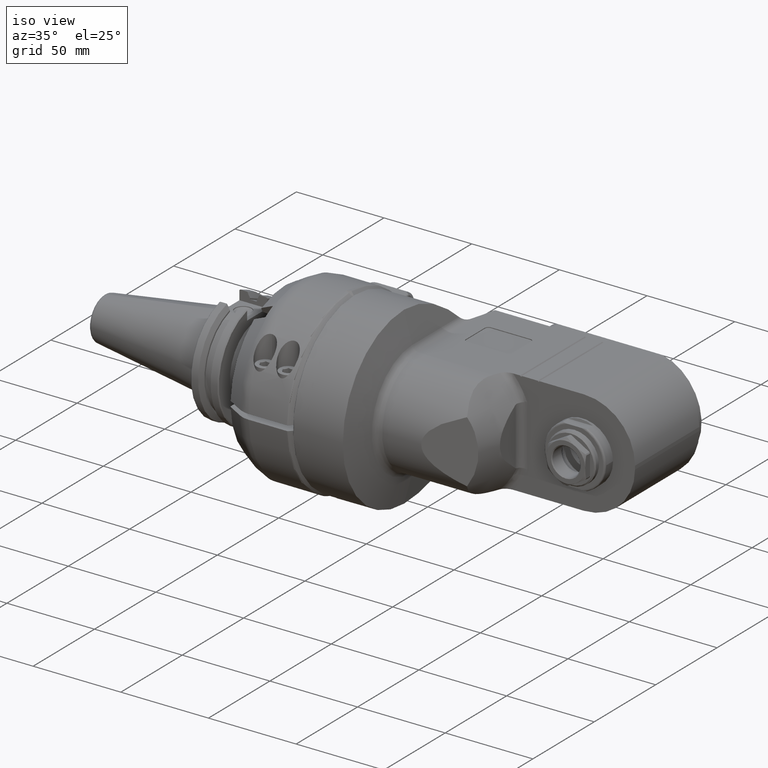
[diagram: clean part render]
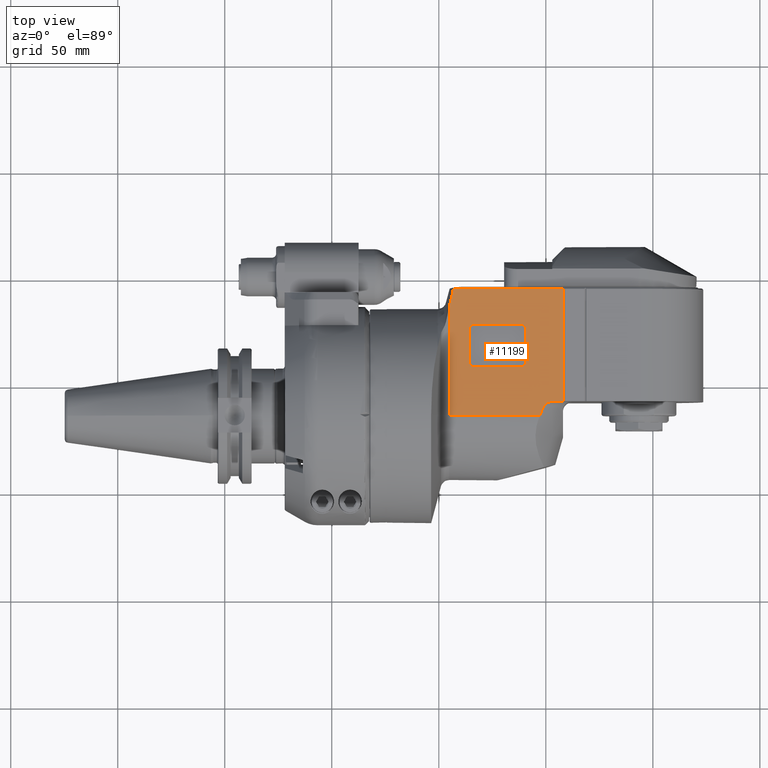
[diagram: tour spotlight — one face highlighted and labeled with its STEP entity id]
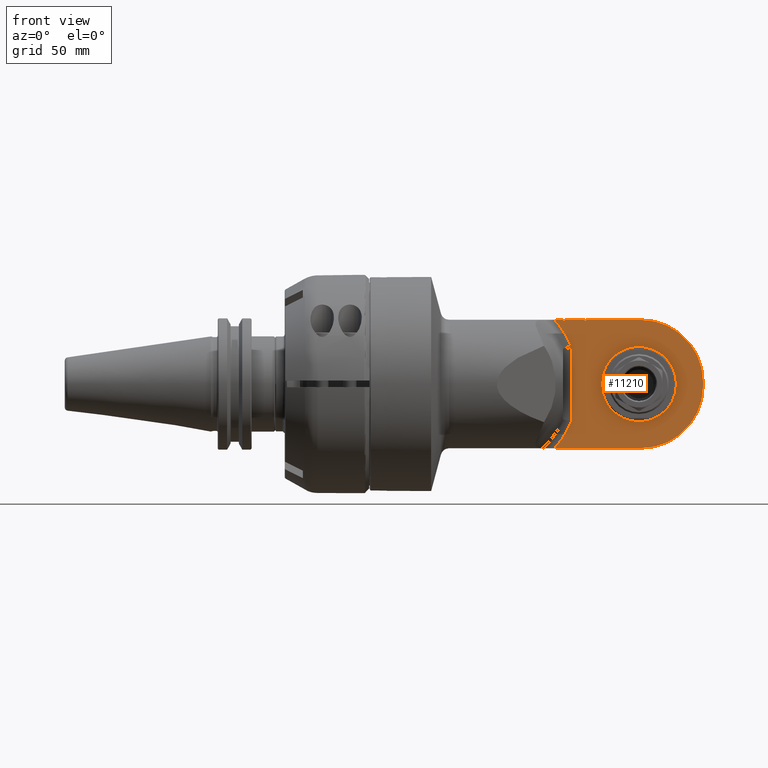
[diagram: tour spotlight — one face highlighted and labeled with its STEP entity id]
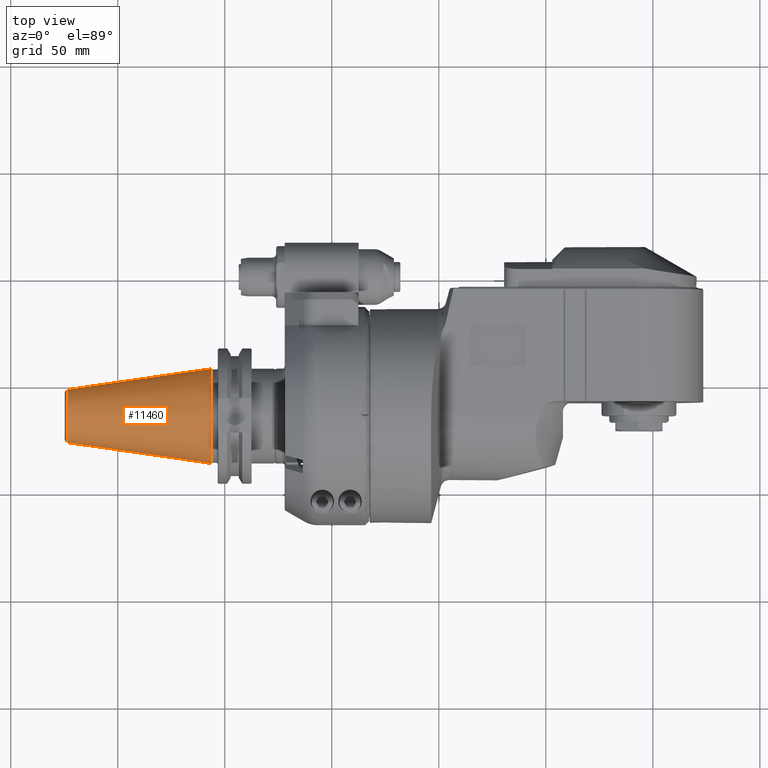
[diagram: tour spotlight — one face highlighted and labeled with its STEP entity id]
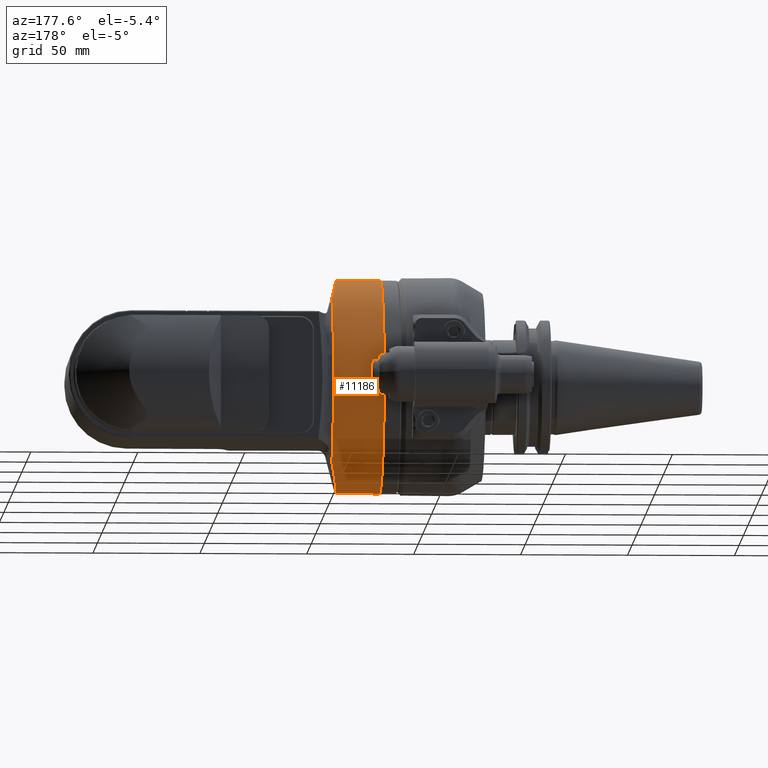
[diagram: tour spotlight — one face highlighted and labeled with its STEP entity id]
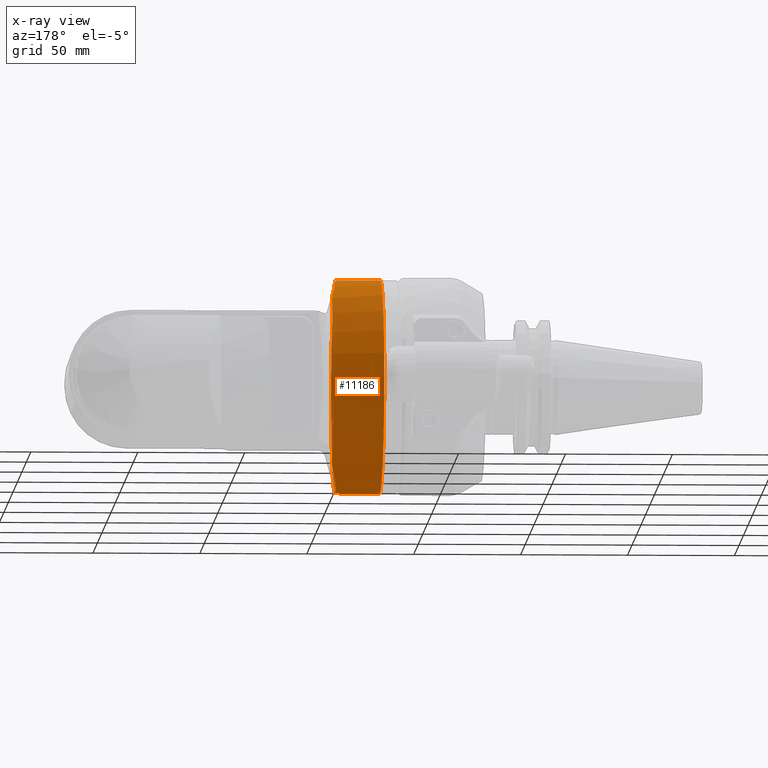
[diagram: x-ray of the same camera — body ghosted, this tour face saturated]
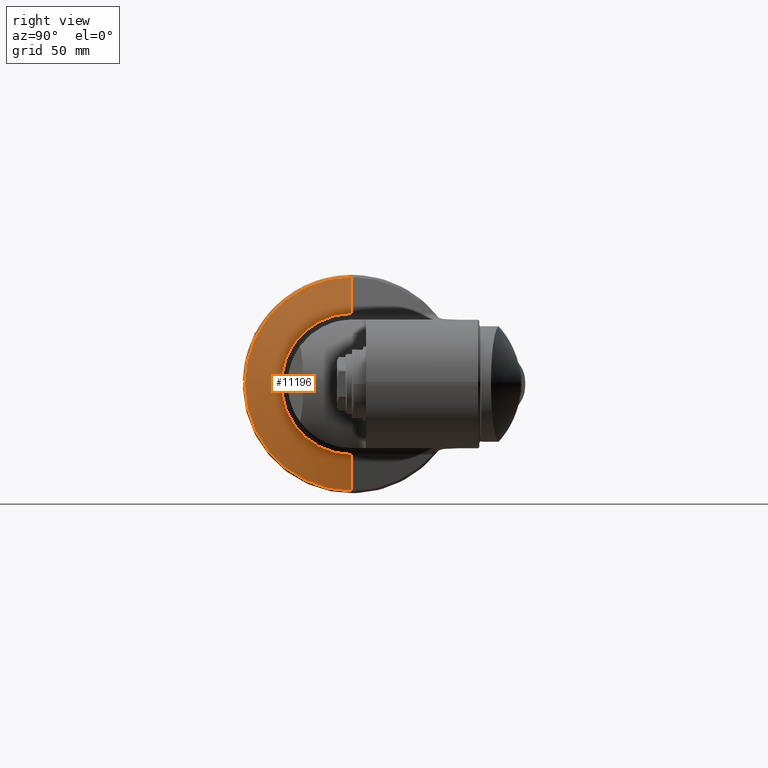
[diagram: tour spotlight — one face highlighted and labeled with its STEP entity id]
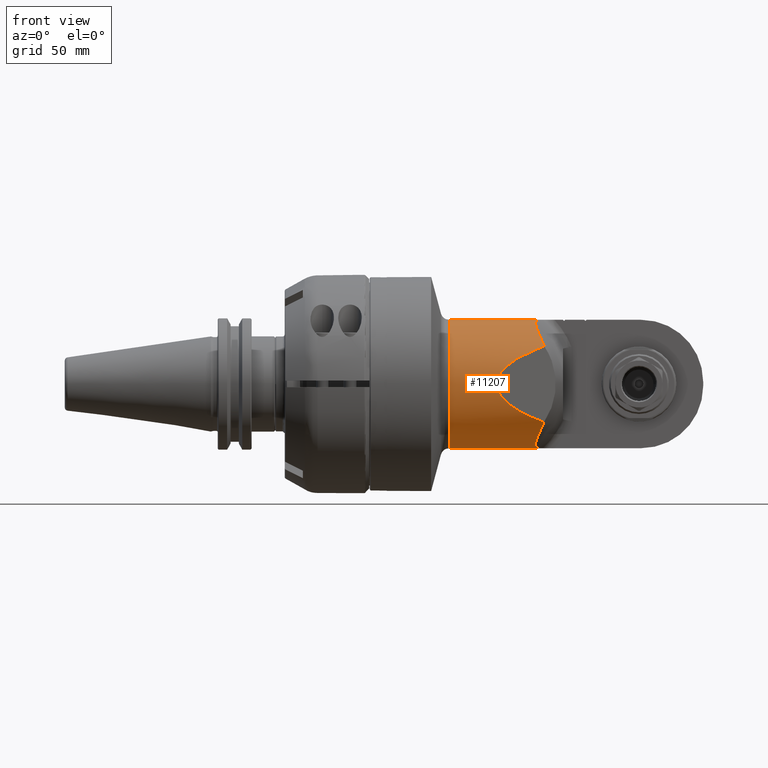
[diagram: tour spotlight — one face highlighted and labeled with its STEP entity id]
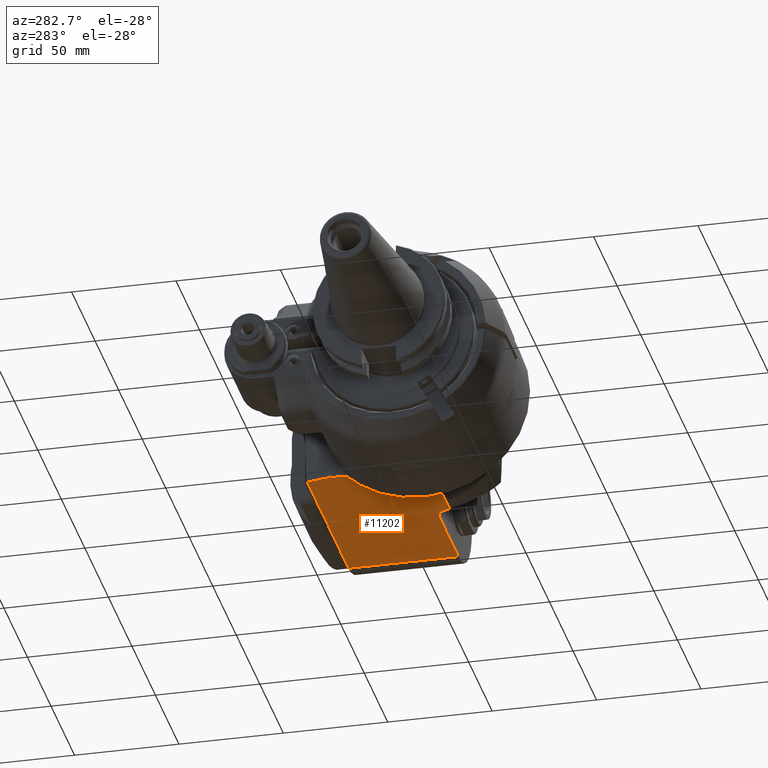
[diagram: tour spotlight — one face highlighted and labeled with its STEP entity id]
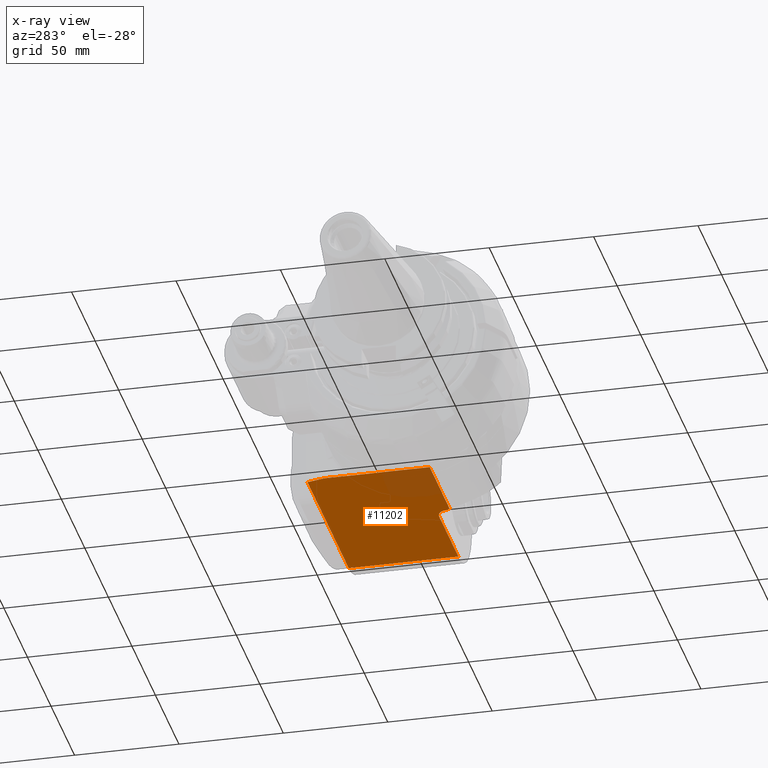
[diagram: x-ray of the same camera — body ghosted, this tour face saturated]
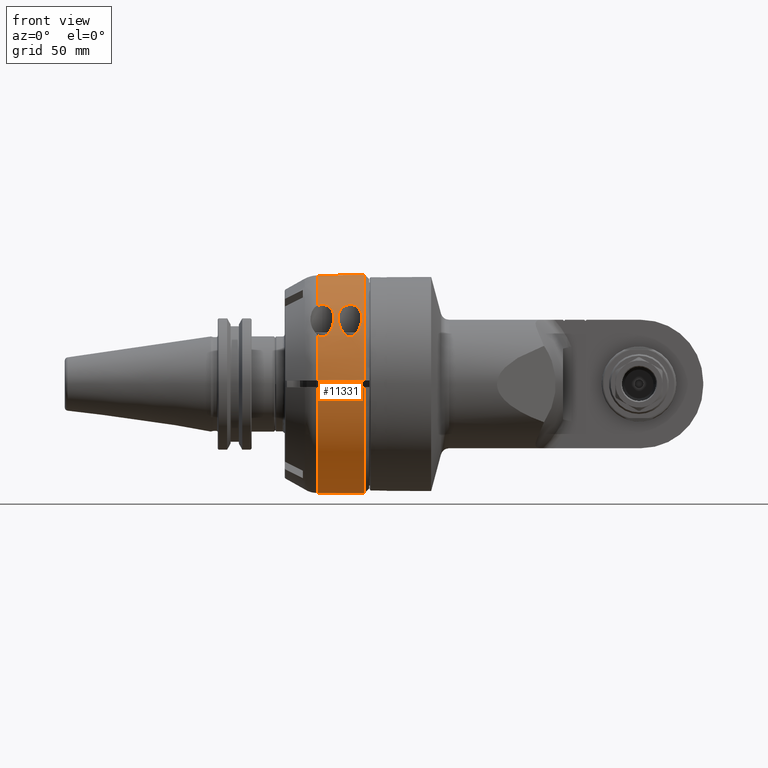
[diagram: tour spotlight — one face highlighted and labeled with its STEP entity id]
A machine part: a face-by-face anatomy tour. The part has 720 B-rep faces; the first image is the clean iso view, then the 8 largest visible faces are spotlighted one at a time (largest first), each with its STEP entity span.

Face 1 — top view, entity #11199. In plain terms, the highlighted planar face has unit normal (0, 0, 1).
Definition (entity closure, byte-faithful):
#108=(
BOUNDED_CURVE()
B_SPLINE_CURVE(2,(#17058,#17059,#17060),.UNSPECIFIED.,.F.,.F.)
B_SPLINE_CURVE_WITH_KNOTS((3,3),(3.88731172129268,4.30357037737945),
 .UNSPECIFIED.)
CURVE()
GEOMETRIC_REPRESENTATION_ITEM()
RATIONAL_B_SPLINE_CURVE((1.03632939364827,1.03683296791404,1.03702782096075))
REPRESENTATION_ITEM('')
);
#109=(
BOUNDED_CURVE()
B_SPLINE_CURVE(2,(#17084,#17085,#17086),.UNSPECIFIED.,.F.,.F.)
B_SPLINE_CURVE_WITH_KNOTS((3,3),(-20.2216502627518,-18.52143439675),
 .UNSPECIFIED.)
CURVE()
GEOMETRIC_REPRESENTATION_ITEM()
RATIONAL_B_SPLINE_CURVE((1.08247320241685,1.10694018668164,1.12670982661861))
REPRESENTATION_ITEM('')
);
#218=B_SPLINE_CURVE_WITH_KNOTS('',3,(#17062,#17063,#17064,#17065,#17066,
#17067,#17068,#17069,#17070,#17071,#17072,#17073,#17074,#17075,#17076,#17077),
 .UNSPECIFIED.,.F.,.F.,(4,2,2,2,2,2,2,4),(-1.29904819683392,-1.26688462573097,
-1.18595281425532,-1.10502100277968,-1.00596959417875,-0.906918185577824,
-0.796275042541381,-0.685631899504938),.UNSPECIFIED.);
#556=FACE_BOUND('',#1716,.T.);
#681=PLANE('',#11999);
#992=FACE_OUTER_BOUND('',#1715,.T.);
#1715=EDGE_LOOP('',(#7648,#7649,#7650,#7651,#7652,#7653,#7654,#7655));
#1716=EDGE_LOOP('',(#7656,#7657,#7658,#7659,#7660,#7661,#7662,#7663));
#2551=LINE('',#17036,#3315);
#2553=LINE('',#17056,#3317);
#2554=LINE('',#17079,#3318);
#2555=LINE('',#17081,#3319);
#2556=LINE('',#17083,#3320);
#2557=LINE('',#17091,#3321);
#2558=LINE('',#17095,#3322);
#2559=LINE('',#17099,#3323);
#2560=LINE('',#17102,#3324);
#3315=VECTOR('',#13456,50.4922186075015);
#3317=VECTOR('',#13460,42.40269030669);
#3318=VECTOR('',#13461,3.958980337505);
#3319=VECTOR('',#13462,52.5);
#3320=VECTOR('',#13463,10.);
#3321=VECTOR('',#13466,15.5);
#3322=VECTOR('',#13469,22.5);
#3323=VECTOR('',#13472,15.5);
#3324=VECTOR('',#13475,22.5);
#4101=CIRCLE('',#12000,2.);
#4102=CIRCLE('',#12001,2.);
#4103=CIRCLE('',#12002,2.);
#4104=CIRCLE('',#12003,2.);
#4788=VERTEX_POINT('',#17031);
#4789=VERTEX_POINT('',#17035);
#4792=VERTEX_POINT('',#17055);
#4793=VERTEX_POINT('',#17057);
#4794=VERTEX_POINT('',#17061);
#4795=VERTEX_POINT('',#17078);
#4796=VERTEX_POINT('',#17080);
#4797=VERTEX_POINT('',#17082);
#4798=VERTEX_POINT('',#17087);
#4799=VERTEX_POINT('',#17088);
#4800=VERTEX_POINT('',#17090);
#4801=VERTEX_POINT('',#17092);
#4802=VERTEX_POINT('',#17094);
#4803=VERTEX_POINT('',#17096);
#4804=VERTEX_POINT('',#17098);
#4805=VERTEX_POINT('',#17100);
#5920=EDGE_CURVE('',#4788,#4789,#2551,.T.);
#5924=EDGE_CURVE('',#4792,#4788,#2553,.T.);
#5925=EDGE_CURVE('',#4792,#4793,#108,.T.);
#5926=EDGE_CURVE('',#4793,#4794,#218,.T.);
#5927=EDGE_CURVE('',#4795,#4794,#2554,.T.);
#5928=EDGE_CURVE('',#4796,#4795,#2555,.T.);
#5929=EDGE_CURVE('',#4797,#4796,#2556,.T.);
#5930=EDGE_CURVE('',#4789,#4797,#109,.T.);
#5931=EDGE_CURVE('',#4798,#4799,#4101,.T.);
#5932=EDGE_CURVE('',#4799,#4800,#2557,.T.);
#5933=EDGE_CURVE('',#4800,#4801,#4102,.T.);
#5934=EDGE_CURVE('',#4801,#4802,#2558,.T.);
#5935=EDGE_CURVE('',#4802,#4803,#4103,.T.);
#5936=EDGE_CURVE('',#4803,#4804,#2559,.T.);
#5937=EDGE_CURVE('',#4804,#4805,#4104,.T.);
#5938=EDGE_CURVE('',#4805,#4798,#2560,.T.);
#7648=ORIENTED_EDGE('',*,*,#5920,.F.);
#7649=ORIENTED_EDGE('',*,*,#5924,.F.);
#7650=ORIENTED_EDGE('',*,*,#5925,.T.);
#7651=ORIENTED_EDGE('',*,*,#5926,.T.);
#7652=ORIENTED_EDGE('',*,*,#5927,.F.);
#7653=ORIENTED_EDGE('',*,*,#5928,.F.);
#7654=ORIENTED_EDGE('',*,*,#5929,.F.);
#7655=ORIENTED_EDGE('',*,*,#5930,.F.);
#7656=ORIENTED_EDGE('',*,*,#5931,.T.);
#7657=ORIENTED_EDGE('',*,*,#5932,.T.);
#7658=ORIENTED_EDGE('',*,*,#5933,.T.);
#7659=ORIENTED_EDGE('',*,*,#5934,.T.);
#7660=ORIENTED_EDGE('',*,*,#5935,.T.);
#7661=ORIENTED_EDGE('',*,*,#5936,.T.);
#7662=ORIENTED_EDGE('',*,*,#5937,.T.);
#7663=ORIENTED_EDGE('',*,*,#5938,.T.);
#11199=ADVANCED_FACE('',(#992,#556),#681,.T.);
#11999=AXIS2_PLACEMENT_3D('',#17054,#13458,#13459);
#12000=AXIS2_PLACEMENT_3D('',#17089,#13464,#13465);
#12001=AXIS2_PLACEMENT_3D('',#17093,#13467,#13468);
#12002=AXIS2_PLACEMENT_3D('',#17097,#13470,#13471);
#12003=AXIS2_PLACEMENT_3D('',#17101,#13473,#13474);
#13456=DIRECTION('',(1.58048043767995E-6,0.99999999999787,-1.32724426305596E-6));
#13458=DIRECTION('center_axis',(0.,0.,1.));
#13459=DIRECTION('ref_axis',(0.,-1.,0.));
#13460=DIRECTION('',(-0.999999999999999,1.247476790636E-8,3.211245698813E-8));
#13461=DIRECTION('',(-1.,0.,0.));
#13462=DIRECTION('',(0.,-1.,0.));
#13463=DIRECTION('',(1.,0.,0.));
#13464=DIRECTION('center_axis',(0.,0.,-1.));
#13465=DIRECTION('ref_axis',(0.,-1.,0.));
#13466=DIRECTION('',(0.,1.,0.));
#13467=DIRECTION('center_axis',(0.,0.,-1.));
#13468=DIRECTION('ref_axis',(-1.,0.,0.));
#13469=DIRECTION('',(1.,0.,0.));
#13470=DIRECTION('center_axis',(0.,0.,-1.));
#13471=DIRECTION('ref_axis',(0.,1.,0.));
#13472=DIRECTION('',(0.,-1.,0.));
#13473=DIRECTION('center_axis',(0.,0.,-1.));
#13474=DIRECTION('ref_axis',(1.,0.,0.));
#13475=DIRECTION('',(-1.,0.,0.));
#17031=CARTESIAN_POINT('',(-88.66025403784,-3.215626318717E-14,30.));
#17035=CARTESIAN_POINT('',(-88.6601802638477,50.492219995972,29.9999405506243));
#17036=CARTESIAN_POINT('',(-88.66025403784,0.,30.));
#17054=CARTESIAN_POINT('Origin',(-93.,0.,30.));
#17055=CARTESIAN_POINT('',(-46.257571096424,-4.81788432546018E-7,29.9999995461167));
#17056=CARTESIAN_POINT('',(-46.25756373116,-5.289637251381E-7,29.99999863835));
#17057=CARTESIAN_POINT('',(-44.8540428182556,3.53527617765084,30.0000000004781));
#17058=CARTESIAN_POINT('Ctrl Pts',(-46.257571109742,-4.76425516622418E-7,
30.));
#17059=CARTESIAN_POINT('Ctrl Pts',(-45.5639810884769,1.72243829959541,30.));
#17060=CARTESIAN_POINT('Ctrl Pts',(-44.8540428178124,3.53527617747736,30.));
#17061=CARTESIAN_POINT('',(-39.45898033751,6.5,30.));
#17062=CARTESIAN_POINT('Ctrl Pts',(-44.8540428178121,3.53527617747716,30.));
#17063=CARTESIAN_POINT('Ctrl Pts',(-44.8123974485482,3.64161824437068,30.));
#17064=CARTESIAN_POINT('Ctrl Pts',(-44.7655773317263,3.74351918680852,30.));
#17065=CARTESIAN_POINT('Ctrl Pts',(-44.5922500260235,4.07829529141558,30.));
#17066=CARTESIAN_POINT('Ctrl Pts',(-44.4264723064874,4.32229786159449,30.));
#17067=CARTESIAN_POINT('Ctrl Pts',(-44.0435369211292,4.76780407145822,30.));
#17068=CARTESIAN_POINT('Ctrl Pts',(-43.8268543227488,4.96971583580245,30.));
#17069=CARTESIAN_POINT('Ctrl Pts',(-43.3578282406687,5.34381130191266,30.));
#17070=CARTESIAN_POINT('Ctrl Pts',(-43.0548954390126,5.54170426895446,30.));
#17071=CARTESIAN_POINT('Ctrl Pts',(-42.4170058685572,5.87849715763416,30.));
#17072=CARTESIAN_POINT('Ctrl Pts',(-42.0822325212658,6.01774436719797,30.));
#17073=CARTESIAN_POINT('Ctrl Pts',(-41.4199135905022,6.24114813823443,30.));
#17074=CARTESIAN_POINT('Ctrl Pts',(-41.0275628869421,6.34051745639951,30.));
#17075=CARTESIAN_POINT('Ctrl Pts',(-40.2314994588138,6.4699308390669,30.));
#17076=CARTESIAN_POINT('Ctrl Pts',(-39.8277908142917,6.5,30.));
#17077=CARTESIAN_POINT('Ctrl Pts',(-39.4589803375031,6.5,30.));
#17078=CARTESIAN_POINT('',(-35.5,6.5,30.));
#17079=CARTESIAN_POINT('',(-35.5,6.5,30.));
#17080=CARTESIAN_POINT('',(-35.5,59.,30.));
#17081=CARTESIAN_POINT('',(-35.5,59.,30.));
#17082=CARTESIAN_POINT('',(-86.6621376001117,59.0000000009116,29.9999999996263));
#17083=CARTESIAN_POINT('',(-134.3000012,59.,30.));
#17084=CARTESIAN_POINT('Ctrl Pts',(-88.6602276275189,50.4922309064034,30.));
#17085=CARTESIAN_POINT('Ctrl Pts',(-87.7388104439338,54.4921866894395,30.));
#17086=CARTESIAN_POINT('Ctrl Pts',(-86.6621376002805,59.0000000009519,30.));
#17087=CARTESIAN_POINT('',(-77.25,22.75,30.));
#17088=CARTESIAN_POINT('',(-79.25,24.75,30.));
#17089=CARTESIAN_POINT('Origin',(-77.25,24.75,30.));
#17090=CARTESIAN_POINT('',(-79.25,40.25,30.));
#17091=CARTESIAN_POINT('',(-79.25,24.75,30.));
#17092=CARTESIAN_POINT('',(-77.25,42.25,30.));
#17093=CARTESIAN_POINT('Origin',(-77.25,40.25,30.));
#17094=CARTESIAN_POINT('',(-54.75,42.25,30.));
#17095=CARTESIAN_POINT('',(-77.25,42.25,30.));
#17096=CARTESIAN_POINT('',(-52.75,40.25,30.));
#17097=CARTESIAN_POINT('Origin',(-54.75,40.25,30.));
#17098=CARTESIAN_POINT('',(-52.75,24.75,30.));
#17099=CARTESIAN_POINT('',(-52.75,40.25,30.));
#17100=CARTESIAN_POINT('',(-54.75,22.75,30.));
#17101=CARTESIAN_POINT('Origin',(-54.75,24.75,30.));
#17102=CARTESIAN_POINT('',(-54.75,22.75,30.));

Face 2 — front view, entity #11210. In plain terms, the highlighted planar face has unit normal (0, 1, 0).
Definition (entity closure, byte-faithful):
#557=FACE_BOUND('',#1728,.T.);
#686=PLANE('',#12020);
#1003=FACE_OUTER_BOUND('',#1727,.T.);
#1727=EDGE_LOOP('',(#7724,#7725,#7726,#7727,#7728,#7729,#7730,#7731,#7732,
#7733,#7734,#7735,#7736,#7737));
#1728=EDGE_LOOP('',(#7738));
#2554=LINE('',#17079,#3318);
#2566=LINE('',#17137,#3330);
#2569=LINE('',#17264,#3333);
#2570=LINE('',#17269,#3334);
#2571=LINE('',#17273,#3335);
#2572=LINE('',#17275,#3336);
#2573=LINE('',#17277,#3337);
#2574=LINE('',#17279,#3338);
#2575=LINE('',#17281,#3339);
#2576=LINE('',#17282,#3340);
#3318=VECTOR('',#13461,3.958980337505);
#3330=VECTOR('',#13489,40.4589803375);
#3333=VECTOR('',#13518,34.79942528261);
#3334=VECTOR('',#13523,2.);
#3335=VECTOR('',#13526,25.5);
#3336=VECTOR('',#13527,0.707106781186402);
#3337=VECTOR('',#13528,0.707106781186402);
#3338=VECTOR('',#13529,9.);
#3339=VECTOR('',#13530,0.707106781186402);
#3340=VECTOR('',#13531,0.707106781186353);
#4108=CIRCLE('',#12019,45.);
#4109=CIRCLE('',#12021,45.);
#4110=CIRCLE('',#12022,29.);
#4111=CIRCLE('',#12023,29.);
#4112=CIRCLE('',#12024,17.5);
#4794=VERTEX_POINT('',#17061);
#4795=VERTEX_POINT('',#17078);
#4813=VERTEX_POINT('',#17134);
#4814=VERTEX_POINT('',#17136);
#4824=VERTEX_POINT('',#17248);
#4825=VERTEX_POINT('',#17263);
#4826=VERTEX_POINT('',#17266);
#4827=VERTEX_POINT('',#17268);
#4828=VERTEX_POINT('',#17270);
#4829=VERTEX_POINT('',#17272);
#4830=VERTEX_POINT('',#17274);
#4831=VERTEX_POINT('',#17276);
#4832=VERTEX_POINT('',#17278);
#4833=VERTEX_POINT('',#17280);
#4834=VERTEX_POINT('',#17283);
#5927=EDGE_CURVE('',#4795,#4794,#2554,.T.);
#5950=EDGE_CURVE('',#4814,#4813,#2566,.T.);
#5968=EDGE_CURVE('',#4794,#4824,#4108,.T.);
#5969=EDGE_CURVE('',#4825,#4824,#2569,.T.);
#5970=EDGE_CURVE('',#4825,#4814,#4109,.T.);
#5971=EDGE_CURVE('',#4813,#4826,#4110,.T.);
#5972=EDGE_CURVE('',#4826,#4827,#2570,.T.);
#5973=EDGE_CURVE('',#4827,#4828,#4111,.T.);
#5974=EDGE_CURVE('',#4828,#4829,#2571,.T.);
#5975=EDGE_CURVE('',#4829,#4830,#2572,.T.);
#5976=EDGE_CURVE('',#4830,#4831,#2573,.T.);
#5977=EDGE_CURVE('',#4831,#4832,#2574,.T.);
#5978=EDGE_CURVE('',#4832,#4833,#2575,.T.);
#5979=EDGE_CURVE('',#4833,#4795,#2576,.T.);
#5980=EDGE_CURVE('',#4834,#4834,#4112,.T.);
#7724=ORIENTED_EDGE('',*,*,#5969,.F.);
#7725=ORIENTED_EDGE('',*,*,#5970,.T.);
#7726=ORIENTED_EDGE('',*,*,#5950,.T.);
#7727=ORIENTED_EDGE('',*,*,#5971,.T.);
#7728=ORIENTED_EDGE('',*,*,#5972,.T.);
#7729=ORIENTED_EDGE('',*,*,#5973,.T.);
#7730=ORIENTED_EDGE('',*,*,#5974,.T.);
#7731=ORIENTED_EDGE('',*,*,#5975,.T.);
#7732=ORIENTED_EDGE('',*,*,#5976,.T.);
#7733=ORIENTED_EDGE('',*,*,#5977,.T.);
#7734=ORIENTED_EDGE('',*,*,#5978,.T.);
#7735=ORIENTED_EDGE('',*,*,#5979,.T.);
#7736=ORIENTED_EDGE('',*,*,#5927,.T.);
#7737=ORIENTED_EDGE('',*,*,#5968,.T.);
#7738=ORIENTED_EDGE('',*,*,#5980,.T.);
#11210=ADVANCED_FACE('',(#1003,#557),#686,.F.);
#12019=AXIS2_PLACEMENT_3D('',#17261,#13514,#13515);
#12020=AXIS2_PLACEMENT_3D('',#17262,#13516,#13517);
#12021=AXIS2_PLACEMENT_3D('',#17265,#13519,#13520);
#12022=AXIS2_PLACEMENT_3D('',#17267,#13521,#13522);
#12023=AXIS2_PLACEMENT_3D('',#17271,#13524,#13525);
#12024=AXIS2_PLACEMENT_3D('',#17284,#13532,#13533);
#13461=DIRECTION('',(-1.,0.,0.));
#13489=DIRECTION('',(1.,0.,0.));
#13514=DIRECTION('center_axis',(0.,1.,0.));
#13515=DIRECTION('ref_axis',(0.7453559924999,0.,0.6666666666667));
#13516=DIRECTION('center_axis',(0.,1.,0.));
#13517=DIRECTION('ref_axis',(1.,0.,0.));
#13518=DIRECTION('',(0.,0.,1.));
#13519=DIRECTION('center_axis',(0.,1.,0.));
#13520=DIRECTION('ref_axis',(0.922222222222218,0.,-0.386660280917907));
#13521=DIRECTION('center_axis',(0.,-1.,0.));
#13522=DIRECTION('ref_axis',(0.,0.,-1.));
#13523=DIRECTION('',(0.,0.,1.));
#13524=DIRECTION('center_axis',(0.,-1.,0.));
#13525=DIRECTION('ref_axis',(1.,0.,0.));
#13526=DIRECTION('',(-1.,0.,0.));
#13527=DIRECTION('',(-0.707106781186498,0.,-0.707106781186598));
#13528=DIRECTION('',(-0.707106781186598,0.,0.707106781186498));
#13529=DIRECTION('',(-1.,0.,0.));
#13530=DIRECTION('',(-0.707106781186598,0.,-0.707106781186498));
#13531=DIRECTION('',(-0.707106781186548,0.,0.707106781186548));
#13532=DIRECTION('center_axis',(0.,1.,0.));
#13533=DIRECTION('ref_axis',(-1.,0.,0.));
#17061=CARTESIAN_POINT('',(-39.45898033751,6.5,30.));
#17078=CARTESIAN_POINT('',(-35.5,6.5,30.));
#17079=CARTESIAN_POINT('',(-35.5,6.5,30.));
#17134=CARTESIAN_POINT('',(1.00000000000001,6.5,-30.));
#17136=CARTESIAN_POINT('',(-39.4589803375,6.5,-30.));
#17137=CARTESIAN_POINT('',(-39.4589803375,6.5,-30.));
#17248=CARTESIAN_POINT('',(-31.5,6.5,17.39971264131));
#17261=CARTESIAN_POINT('Origin',(-73.,6.5,0.));
#17262=CARTESIAN_POINT('Origin',(-20.534653976,6.5,0.));
#17263=CARTESIAN_POINT('',(-31.5,6.5,-17.39971264131));
#17264=CARTESIAN_POINT('',(-31.5,6.5,-17.39971264131));
#17265=CARTESIAN_POINT('Origin',(-73.,6.5,0.));
#17266=CARTESIAN_POINT('',(30.,6.5,-1.));
#17267=CARTESIAN_POINT('Origin',(1.00000000000001,6.5,-1.));
#17268=CARTESIAN_POINT('',(30.,6.5,1.));
#17269=CARTESIAN_POINT('',(30.,6.5,-1.));
#17270=CARTESIAN_POINT('',(1.00000000000001,6.5,30.));
#17271=CARTESIAN_POINT('Origin',(1.00000000000001,6.5,1.));
#17272=CARTESIAN_POINT('',(-24.5,6.5,30.));
#17273=CARTESIAN_POINT('',(1.00000000000001,6.5,30.));
#17274=CARTESIAN_POINT('',(-25.,6.5,29.5));
#17275=CARTESIAN_POINT('',(-24.5,6.5,30.));
#17276=CARTESIAN_POINT('',(-25.5,6.5,30.));
#17277=CARTESIAN_POINT('',(-25.,6.5,29.5));
#17278=CARTESIAN_POINT('',(-34.5,6.5,30.));
#17279=CARTESIAN_POINT('',(-25.5,6.5,30.));
#17280=CARTESIAN_POINT('',(-35.,6.5,29.5));
#17281=CARTESIAN_POINT('',(-34.5,6.5,30.));
#17282=CARTESIAN_POINT('',(-35.,6.5,29.5));
#17283=CARTESIAN_POINT('',(17.5,6.5,0.));
#17284=CARTESIAN_POINT('Origin',(0.,6.5,0.));

Face 3 — top view, entity #11460. In plain terms, the highlighted conical surface has half-angle 8.297 deg.
Definition (entity closure, byte-faithful):
#452=CONICAL_SURFACE('',#12500,17.34203190906,0.144812411498922);
#1253=FACE_OUTER_BOUND('',#2010,.T.);
#2010=EDGE_LOOP('',(#8950,#8951,#8952,#8953,#8954));
#2851=LINE('',#19249,#3615);
#3615=VECTOR('',#14760,17.34203190906);
#4334=CIRCLE('',#12499,22.225);
#4335=CIRCLE('',#12501,12.45906381812);
#4336=CIRCLE('',#12502,12.45906381812);
#5216=VERTEX_POINT('',#19244);
#5217=VERTEX_POINT('',#19248);
#5218=VERTEX_POINT('',#19250);
#6572=EDGE_CURVE('',#5216,#5216,#4334,.T.);
#6574=EDGE_CURVE('',#5216,#5217,#2851,.T.);
#6575=EDGE_CURVE('',#5218,#5217,#4335,.T.);
#6576=EDGE_CURVE('',#5217,#5218,#4336,.T.);
#8950=ORIENTED_EDGE('',*,*,#6572,.F.);
#8951=ORIENTED_EDGE('',*,*,#6574,.T.);
#8952=ORIENTED_EDGE('',*,*,#6575,.F.);
#8953=ORIENTED_EDGE('',*,*,#6576,.F.);
#8954=ORIENTED_EDGE('',*,*,#6574,.F.);
#11460=ADVANCED_FACE('',(#1253),#452,.T.);
#12499=AXIS2_PLACEMENT_3D('',#19245,#14755,#14756);
#12500=AXIS2_PLACEMENT_3D('',#19247,#14758,#14759);
#12501=AXIS2_PLACEMENT_3D('',#19251,#14761,#14762);
#12502=AXIS2_PLACEMENT_3D('',#19252,#14763,#14764);
#14755=DIRECTION('center_axis',(1.,0.,0.));
#14756=DIRECTION('ref_axis',(0.,0.,1.));
#14758=DIRECTION('center_axis',(1.,0.,0.));
#14759=DIRECTION('ref_axis',(0.,0.,-1.));
#14760=DIRECTION('',(-0.98953299358046,1.76724869581176E-17,-0.144306807239621));
#14761=DIRECTION('center_axis',(-1.,0.,0.));
#14762=DIRECTION('ref_axis',(0.,0.,1.));
#14763=DIRECTION('center_axis',(-1.,0.,0.));
#14764=DIRECTION('ref_axis',(0.,0.,1.));
#19244=CARTESIAN_POINT('',(-200.000000000001,2.72177751110459E-15,22.2249999999967));
#19245=CARTESIAN_POINT('Origin',(-200.,0.,0.));
#19247=CARTESIAN_POINT('Origin',(-233.48323010543,0.,0.));
#19248=CARTESIAN_POINT('',(-266.9664602109,0.,12.45906381812));
#19249=CARTESIAN_POINT('',(-233.48323010543,-2.12378638681416E-15,17.34203190906));
#19250=CARTESIAN_POINT('',(-266.9664602109,1.52579526252333E-15,-12.45906381812));
#19251=CARTESIAN_POINT('Origin',(-266.9664602109,0.,0.));
#19252=CARTESIAN_POINT('Origin',(-266.9664602109,0.,0.));

Face 4 — auxiliary view, entity #11186. An x-ray twin of the same camera follows (body ghosted, this face saturated) — the face is partly hidden behind the body. In plain terms, the highlighted cylindrical surface (bore or boss wall) has radius 50 mm, axis along (1, 0, 0).
Definition (entity closure, byte-faithful):
#979=FACE_OUTER_BOUND('',#1699,.T.);
#1699=EDGE_LOOP('',(#7598,#7599,#7600,#7601,#7602,#7603,#7604,#7605));
#2543=LINE('',#16988,#3307);
#3307=VECTOR('',#13396,50.);
#4071=ELLIPSE('',#11969,51.7638090205038,50.);
#4072=ELLIPSE('',#11971,51.7638090205038,50.);
#4084=CIRCLE('',#11968,50.);
#4085=CIRCLE('',#11970,50.);
#4086=CIRCLE('',#11972,50.);
#4087=CIRCLE('',#11973,50.);
#4770=VERTEX_POINT('',#16977);
#4771=VERTEX_POINT('',#16978);
#4772=VERTEX_POINT('',#16980);
#4773=VERTEX_POINT('',#16982);
#4774=VERTEX_POINT('',#16984);
#4775=VERTEX_POINT('',#16987);
#5893=EDGE_CURVE('',#4770,#4771,#4084,.T.);
#5894=EDGE_CURVE('',#4772,#4770,#4071,.T.);
#5895=EDGE_CURVE('',#4773,#4772,#4085,.T.);
#5896=EDGE_CURVE('',#4774,#4773,#4072,.T.);
#5897=EDGE_CURVE('',#4771,#4774,#4086,.T.);
#5898=EDGE_CURVE('',#4771,#4775,#2543,.T.);
#5899=EDGE_CURVE('',#4775,#4775,#4087,.T.);
#7598=ORIENTED_EDGE('',*,*,#5893,.F.);
#7599=ORIENTED_EDGE('',*,*,#5894,.F.);
#7600=ORIENTED_EDGE('',*,*,#5895,.F.);
#7601=ORIENTED_EDGE('',*,*,#5896,.F.);
#7602=ORIENTED_EDGE('',*,*,#5897,.F.);
#7603=ORIENTED_EDGE('',*,*,#5898,.T.);
#7604=ORIENTED_EDGE('',*,*,#5899,.T.);
#7605=ORIENTED_EDGE('',*,*,#5898,.F.);
#10986=CYLINDRICAL_SURFACE('',#11967,50.);
#11186=ADVANCED_FACE('',(#979),#10986,.T.);
#11967=AXIS2_PLACEMENT_3D('',#16976,#13384,#13385);
#11968=AXIS2_PLACEMENT_3D('',#16979,#13386,#13387);
#11969=AXIS2_PLACEMENT_3D('',#16981,#13388,#13389);
#11970=AXIS2_PLACEMENT_3D('',#16983,#13390,#13391);
#11971=AXIS2_PLACEMENT_3D('',#16985,#13392,#13393);
#11972=AXIS2_PLACEMENT_3D('',#16986,#13394,#13395);
#11973=AXIS2_PLACEMENT_3D('',#16989,#13397,#13398);
#13384=DIRECTION('center_axis',(1.,0.,0.));
#13385=DIRECTION('ref_axis',(0.,-1.,0.));
#13386=DIRECTION('center_axis',(1.,0.,0.));
#13387=DIRECTION('ref_axis',(0.,0.632401211988616,-0.77464101819832));
#13388=DIRECTION('center_axis',(0.965925826289076,0.,-0.258819045102493));
#13389=DIRECTION('ref_axis',(-0.258819045102493,0.,-0.965925826289076));
#13390=DIRECTION('center_axis',(1.,0.,0.));
#13391=DIRECTION('ref_axis',(0.,-4.244886712573E-14,1.));
#13392=DIRECTION('center_axis',(0.965925826289076,0.,0.258819045102493));
#13393=DIRECTION('ref_axis',(0.258819045102493,0.,-0.965925826289076));
#13394=DIRECTION('center_axis',(1.,0.,0.));
#13395=DIRECTION('ref_axis',(0.,0.632401211988616,-0.77464101819832));
#13396=DIRECTION('',(-1.,0.,0.));
#13397=DIRECTION('center_axis',(1.,0.,0.));
#13398=DIRECTION('ref_axis',(0.,1.,0.));
#16976=CARTESIAN_POINT('Origin',(-108.03465398967,0.,0.));
#16977=CARTESIAN_POINT('',(-94.06930797934,31.62006059943,-38.73205090992));
#16978=CARTESIAN_POINT('',(-94.0693079793357,50.,6.12323399573677E-15));
#16979=CARTESIAN_POINT('Origin',(-94.06930797934,0.,0.));
#16980=CARTESIAN_POINT('',(-97.08854583838,0.,-50.));
#16981=CARTESIAN_POINT('Origin',(-83.6910862168231,0.,0.));
#16982=CARTESIAN_POINT('',(-97.08854583838,-2.122443356287E-12,50.));
#16983=CARTESIAN_POINT('Origin',(-97.08854583838,0.,0.));
#16984=CARTESIAN_POINT('',(-94.06930797934,31.62006059943,38.73205090992));
#16985=CARTESIAN_POINT('Origin',(-83.6910862168314,0.,0.));
#16986=CARTESIAN_POINT('Origin',(-94.06930797934,0.,0.));
#16987=CARTESIAN_POINT('',(-117.8,50.,-2.832769448824E-14));
#16988=CARTESIAN_POINT('',(-108.03465398967,50.,6.12323399573677E-15));
#16989=CARTESIAN_POINT('Origin',(-117.8,0.,0.));

Face 5 — right view, entity #11196. In plain terms, the highlighted conical surface has half-angle 75 deg.
Definition (entity closure, byte-faithful):
#390=CONICAL_SURFACE('',#11992,41.48236190979,1.30899693899575);
#989=FACE_OUTER_BOUND('',#1712,.T.);
#1712=EDGE_LOOP('',(#7635,#7636,#7637,#7638));
#2549=LINE('',#17026,#3313);
#2550=LINE('',#17027,#3314);
#3313=VECTOR('',#13444,17.6362156562904);
#3314=VECTOR('',#13445,17.6362156562904);
#4085=CIRCLE('',#11970,50.);
#4097=CIRCLE('',#11993,32.96472381959);
#4772=VERTEX_POINT('',#16980);
#4773=VERTEX_POINT('',#16982);
#4785=VERTEX_POINT('',#17023);
#4786=VERTEX_POINT('',#17024);
#5895=EDGE_CURVE('',#4773,#4772,#4085,.T.);
#5914=EDGE_CURVE('',#4785,#4786,#4097,.T.);
#5915=EDGE_CURVE('',#4785,#4773,#2549,.T.);
#5916=EDGE_CURVE('',#4772,#4786,#2550,.T.);
#7635=ORIENTED_EDGE('',*,*,#5914,.F.);
#7636=ORIENTED_EDGE('',*,*,#5915,.T.);
#7637=ORIENTED_EDGE('',*,*,#5895,.T.);
#7638=ORIENTED_EDGE('',*,*,#5916,.T.);
#11196=ADVANCED_FACE('',(#989),#390,.T.);
#11970=AXIS2_PLACEMENT_3D('',#16983,#13390,#13391);
#11992=AXIS2_PLACEMENT_3D('',#17022,#13440,#13441);
#11993=AXIS2_PLACEMENT_3D('',#17025,#13442,#13443);
#13390=DIRECTION('center_axis',(1.,0.,0.));
#13391=DIRECTION('ref_axis',(0.,-4.244886712573E-14,1.));
#13440=DIRECTION('center_axis',(-1.,0.,0.));
#13441=DIRECTION('ref_axis',(0.,0.,1.));
#13442=DIRECTION('center_axis',(1.,0.,0.));
#13443=DIRECTION('ref_axis',(0.,-1.,0.));
#13444=DIRECTION('',(-0.258819045102493,-3.9731383522489E-14,0.965925826289076));
#13445=DIRECTION('',(0.258819045102493,4.1256889903369E-14,0.965925826289076));
#16980=CARTESIAN_POINT('',(-97.08854583838,0.,-50.));
#16982=CARTESIAN_POINT('',(-97.08854583838,-2.122443356287E-12,50.));
#16983=CARTESIAN_POINT('Origin',(-97.08854583838,0.,0.));
#17022=CARTESIAN_POINT('Origin',(-94.80625159069,0.,0.));
#17023=CARTESIAN_POINT('',(-92.523957343,-3.53340778345E-14,32.96472381959));
#17024=CARTESIAN_POINT('',(-92.523957343,0.,-32.96472381959));
#17025=CARTESIAN_POINT('Origin',(-92.523957343,0.,0.));
#17026=CARTESIAN_POINT('',(-92.523957343,-1.085202663415E-14,32.96472381959));
#17027=CARTESIAN_POINT('',(-97.08854583838,-7.243251704225E-13,-50.));

Face 6 — front view, entity #11207. In plain terms, the highlighted cylindrical surface (partial cylindrical patch) has radius 30 mm, axis along (-1, 0, 0).
Definition (entity closure, byte-faithful):
#224=B_SPLINE_CURVE_WITH_KNOTS('',3,(#17188,#17189,#17190,#17191,#17192,
#17193,#17194,#17195,#17196,#17197,#17198,#17199,#17200,#17201,#17202),
 .UNSPECIFIED.,.F.,.F.,(4,3,2,2,2,2,4),(-0.631447076124862,0.,0.496234500489972,
0.992469000979944,1.48870350146992,1.98493800195989,2.17541248051702),
 .UNSPECIFIED.);
#225=B_SPLINE_CURVE_WITH_KNOTS('',3,(#17205,#17206,#17207,#17208,#17209,
#17210,#17211,#17212,#17213,#17214,#17215,#17216,#17217,#17218),
 .UNSPECIFIED.,.F.,.F.,(4,2,2,2,2,2,4),(5.90355440233918,6.0940288808963,
6.59026338138627,7.08649788187625,7.58273238236622,8.07896688285619,8.71041395897599),
 .UNSPECIFIED.);
#1000=FACE_OUTER_BOUND('',#1724,.T.);
#1724=EDGE_LOOP('',(#7704,#7705,#7706,#7707,#7708,#7709));
#2553=LINE('',#17056,#3317);
#2567=LINE('',#17159,#3331);
#3317=VECTOR('',#13460,42.40269030669);
#3331=VECTOR('',#13490,42.40269030598);
#4073=ELLIPSE('',#12013,115.9110991547,30.);
#4099=CIRCLE('',#11996,30.);
#4787=VERTEX_POINT('',#17029);
#4788=VERTEX_POINT('',#17031);
#4792=VERTEX_POINT('',#17055);
#4816=VERTEX_POINT('',#17155);
#4818=VERTEX_POINT('',#17187);
#4819=VERTEX_POINT('',#17203);
#5918=EDGE_CURVE('',#4787,#4788,#4099,.T.);
#5924=EDGE_CURVE('',#4792,#4788,#2553,.T.);
#5953=EDGE_CURVE('',#4787,#4816,#2567,.T.);
#5958=EDGE_CURVE('',#4816,#4818,#224,.T.);
#5959=EDGE_CURVE('',#4819,#4818,#4073,.T.);
#5960=EDGE_CURVE('',#4819,#4792,#225,.T.);
#7704=ORIENTED_EDGE('',*,*,#5918,.F.);
#7705=ORIENTED_EDGE('',*,*,#5953,.T.);
#7706=ORIENTED_EDGE('',*,*,#5958,.T.);
#7707=ORIENTED_EDGE('',*,*,#5959,.F.);
#7708=ORIENTED_EDGE('',*,*,#5960,.T.);
#7709=ORIENTED_EDGE('',*,*,#5924,.T.);
#10992=CYLINDRICAL_SURFACE('',#12012,30.);
#11207=ADVANCED_FACE('',(#1000),#10992,.T.);
#11996=AXIS2_PLACEMENT_3D('',#17032,#13450,#13451);
#12012=AXIS2_PLACEMENT_3D('',#17186,#13500,#13501);
#12013=AXIS2_PLACEMENT_3D('',#17204,#13502,#13503);
#13450=DIRECTION('center_axis',(-1.,0.,0.));
#13451=DIRECTION('ref_axis',(0.,0.,-1.));
#13460=DIRECTION('',(-0.999999999999999,1.247476790636E-8,3.211245698813E-8));
#13490=DIRECTION('',(0.999999999999999,-1.247353217578E-8,3.210927516568E-8));
#13500=DIRECTION('center_axis',(-1.,0.,0.));
#13501=DIRECTION('ref_axis',(0.,-1.,0.));
#13502=DIRECTION('center_axis',(0.258819045102493,-0.965925826289076,0.));
#13503=DIRECTION('ref_axis',(-0.965925826289076,-0.258819045102493,0.));
#17029=CARTESIAN_POINT('',(-88.66025403784,0.,-30.));
#17031=CARTESIAN_POINT('',(-88.66025403784,-3.215626318717E-14,30.));
#17032=CARTESIAN_POINT('Origin',(-88.66025403784,0.,0.));
#17055=CARTESIAN_POINT('',(-46.257571096424,-4.81788432546018E-7,29.9999995461167));
#17056=CARTESIAN_POINT('',(-46.25756373116,-5.289637251381E-7,29.99999863835));
#17155=CARTESIAN_POINT('',(-46.2575710964063,-4.81740687977382E-7,-29.9999995461602));
#17159=CARTESIAN_POINT('',(-88.66025403784,0.,-30.));
#17186=CARTESIAN_POINT('Origin',(-93.,0.,0.));
#17187=CARTESIAN_POINT('',(-44.38006969038,-24.11592247693,-17.84439080178));
#17188=CARTESIAN_POINT('Ctrl Pts',(-46.257571109723,-4.76378350933171E-7,
-30.));
#17189=CARTESIAN_POINT('Ctrl Pts',(-47.0475367306157,-1.96177535148488,
-29.9999999688484));
#17190=CARTESIAN_POINT('Ctrl Pts',(-47.6568486066579,-3.96739765450488,
-29.8088162307742));
#17191=CARTESIAN_POINT('Ctrl Pts',(-48.0097127500668,-6.00050111705062,
-29.3937746188589));
#17192=CARTESIAN_POINT('Ctrl Pts',(-48.287017640003,-7.59825351678035,-29.0676064018244));
#17193=CARTESIAN_POINT('Ctrl Pts',(-48.4035958756556,-9.22370600500435,
-28.5976980635609));
#17194=CARTESIAN_POINT('Ctrl Pts',(-48.2976470693542,-12.4034179634253,
-27.3689662005721));
#17195=CARTESIAN_POINT('Ctrl Pts',(-48.0769514747894,-13.9577825292262,
-26.6102574109573));
#17196=CARTESIAN_POINT('Ctrl Pts',(-47.4074274130091,-16.8918724350041,
-24.851367015365));
#17197=CARTESIAN_POINT('Ctrl Pts',(-46.9606446375192,-18.2758596139151,
-23.8492067625032));
#17198=CARTESIAN_POINT('Ctrl Pts',(-45.9878367491989,-20.8111636579707,
-21.6722674199424));
#17199=CARTESIAN_POINT('Ctrl Pts',(-45.4630960686963,-21.9626012822079,
-20.4970552075194));
#17200=CARTESIAN_POINT('Ctrl Pts',(-44.7698363534827,-23.3653003514982,
-18.8262816413445));
#17201=CARTESIAN_POINT('Ctrl Pts',(-44.5748766912201,-23.7461728528271,
-18.3440914287062));
#17202=CARTESIAN_POINT('Ctrl Pts',(-44.3800696903753,-24.1159224769298,
-17.8443908017817));
#17203=CARTESIAN_POINT('',(-44.38006969038,-24.11592247693,17.84439080178));
#17204=CARTESIAN_POINT('Origin',(45.6217782649203,0.,0.));
#17205=CARTESIAN_POINT('Ctrl Pts',(-44.3800696903753,-24.1159224769298,
17.8443908017817));
#17206=CARTESIAN_POINT('Ctrl Pts',(-44.5748766912201,-23.7461728528271,
18.3440914287062));
#17207=CARTESIAN_POINT('Ctrl Pts',(-44.7698363534827,-23.3653003514982,
18.8262816413445));
#17208=CARTESIAN_POINT('Ctrl Pts',(-45.4630960686963,-21.9626012822079,
20.4970552075194));
#17209=CARTESIAN_POINT('Ctrl Pts',(-45.9878367491989,-20.8111636579707,
21.6722674199424));
#17210=CARTESIAN_POINT('Ctrl Pts',(-46.9606446375192,-18.2758596139151,
23.8492067625032));
#17211=CARTESIAN_POINT('Ctrl Pts',(-47.4074274130091,-16.8918724350041,
24.851367015365));
#17212=CARTESIAN_POINT('Ctrl Pts',(-48.0769514747894,-13.9577825292262,
26.6102574109573));
#17213=CARTESIAN_POINT('Ctrl Pts',(-48.2976470693542,-12.4034179634253,
27.3689662005721));
#17214=CARTESIAN_POINT('Ctrl Pts',(-48.4035958756556,-9.22370600500435,
28.5976980635609));
#17215=CARTESIAN_POINT('Ctrl Pts',(-48.287017640003,-7.59825351678035,29.0676064018244));
#17216=CARTESIAN_POINT('Ctrl Pts',(-47.6568486066607,-3.96739765452119,
29.8088162307708));
#17217=CARTESIAN_POINT('Ctrl Pts',(-47.0475367306255,-1.96177535151705,
29.9999999688453));
#17218=CARTESIAN_POINT('Ctrl Pts',(-46.257571109742,-4.7642556399996E-7,
30.));

Face 7 — auxiliary view, entity #11202. An x-ray twin of the same camera follows (body ghosted, this face saturated) — the face is partly hidden behind the body. In plain terms, the highlighted planar face has unit normal (0, 0, -1).
Definition (entity closure, byte-faithful):
#111=(
BOUNDED_CURVE()
B_SPLINE_CURVE(2,(#17110,#17111,#17112),.UNSPECIFIED.,.F.,.F.)
B_SPLINE_CURVE_WITH_KNOTS((3,3),(31.6407018756525,33.7809985928058),
 .UNSPECIFIED.)
CURVE()
GEOMETRIC_REPRESENTATION_ITEM()
RATIONAL_B_SPLINE_CURVE((1.16255857113133,1.13492545272164,1.10281010088752))
REPRESENTATION_ITEM('')
);
#114=(
BOUNDED_CURVE()
B_SPLINE_CURVE(2,(#17156,#17157,#17158),.UNSPECIFIED.,.F.,.F.)
B_SPLINE_CURVE_WITH_KNOTS((3,3),(4.82902352379091,5.24528217645162),
 .UNSPECIFIED.)
CURVE()
GEOMETRIC_REPRESENTATION_ITEM()
RATIONAL_B_SPLINE_CURVE((1.03702782096055,1.03683296791277,1.03632939365101))
REPRESENTATION_ITEM('')
);
#220=B_SPLINE_CURVE_WITH_KNOTS('',3,(#17139,#17140,#17141,#17142,#17143,
#17144,#17145,#17146,#17147,#17148,#17149,#17150,#17151,#17152,#17153,#17154),
 .UNSPECIFIED.,.F.,.F.,(4,2,2,2,2,2,2,4),(1.49826923300153,1.53043280711697,
1.61136461859275,1.69229643006853,1.79134783866961,1.8903992472707,2.00104239030733,
2.11168553334395),.UNSPECIFIED.);
#683=PLANE('',#12007);
#995=FACE_OUTER_BOUND('',#1719,.T.);
#1719=EDGE_LOOP('',(#7676,#7677,#7678,#7679,#7680,#7681,#7682,#7683));
#2561=LINE('',#17128,#3325);
#2564=LINE('',#17133,#3328);
#2565=LINE('',#17135,#3329);
#2566=LINE('',#17137,#3330);
#2567=LINE('',#17159,#3331);
#3325=VECTOR('',#13482,10.);
#3328=VECTOR('',#13487,50.4922418065116);
#3329=VECTOR('',#13488,52.5);
#3330=VECTOR('',#13489,40.4589803375);
#3331=VECTOR('',#13490,42.40269030598);
#4787=VERTEX_POINT('',#17029);
#4807=VERTEX_POINT('',#17105);
#4808=VERTEX_POINT('',#17109);
#4811=VERTEX_POINT('',#17127);
#4813=VERTEX_POINT('',#17134);
#4814=VERTEX_POINT('',#17136);
#4815=VERTEX_POINT('',#17138);
#4816=VERTEX_POINT('',#17155);
#5940=EDGE_CURVE('',#4807,#4808,#111,.T.);
#5945=EDGE_CURVE('',#4811,#4807,#2561,.T.);
#5948=EDGE_CURVE('',#4808,#4787,#2564,.T.);
#5949=EDGE_CURVE('',#4813,#4811,#2565,.T.);
#5950=EDGE_CURVE('',#4814,#4813,#2566,.T.);
#5951=EDGE_CURVE('',#4815,#4814,#220,.T.);
#5952=EDGE_CURVE('',#4815,#4816,#114,.T.);
#5953=EDGE_CURVE('',#4787,#4816,#2567,.T.);
#7676=ORIENTED_EDGE('',*,*,#5948,.F.);
#7677=ORIENTED_EDGE('',*,*,#5940,.F.);
#7678=ORIENTED_EDGE('',*,*,#5945,.F.);
#7679=ORIENTED_EDGE('',*,*,#5949,.F.);
#7680=ORIENTED_EDGE('',*,*,#5950,.F.);
#7681=ORIENTED_EDGE('',*,*,#5951,.F.);
#7682=ORIENTED_EDGE('',*,*,#5952,.T.);
#7683=ORIENTED_EDGE('',*,*,#5953,.F.);
#11202=ADVANCED_FACE('',(#995),#683,.T.);
#12007=AXIS2_PLACEMENT_3D('',#17132,#13485,#13486);
#13482=DIRECTION('',(-1.,0.,0.));
#13485=DIRECTION('center_axis',(0.,0.,-1.));
#13486=DIRECTION('ref_axis',(0.,1.,0.));
#13487=DIRECTION('',(3.98864110264687E-7,-0.999999999999368,-1.05111995132497E-6));
#13488=DIRECTION('',(0.,1.,0.));
#13489=DIRECTION('',(1.,0.,0.));
#13490=DIRECTION('',(0.999999999999999,-1.247353217578E-8,3.210927516568E-8));
#17029=CARTESIAN_POINT('',(-88.66025403784,0.,-30.));
#17105=CARTESIAN_POINT('',(-86.6621376001117,59.0000000009117,-29.9999999996262));
#17109=CARTESIAN_POINT('',(-88.6602708642723,50.4921914898967,-29.9999516932181));
#17110=CARTESIAN_POINT('Ctrl Pts',(-86.6621376002805,59.0000000009519,-30.));
#17111=CARTESIAN_POINT('Ctrl Pts',(-87.7388160616828,54.4921631690508,-30.));
#17112=CARTESIAN_POINT('Ctrl Pts',(-88.6602372876668,50.4921889708181,-30.));
#17127=CARTESIAN_POINT('',(1.00000000000001,59.,-30.));
#17128=CARTESIAN_POINT('',(-134.3000012,59.,-30.));
#17132=CARTESIAN_POINT('Origin',(-93.,65.11439776565,-30.));
#17133=CARTESIAN_POINT('',(-88.66027417739,50.49224180648,-29.9999469266));
#17134=CARTESIAN_POINT('',(1.00000000000001,6.5,-30.));
#17135=CARTESIAN_POINT('',(1.00000000000001,6.5,-30.));
#17136=CARTESIAN_POINT('',(-39.4589803375,6.5,-30.));
#17137=CARTESIAN_POINT('',(-39.4589803375,6.5,-30.));
#17138=CARTESIAN_POINT('',(-44.8540428344693,3.53527614953475,-30.0000000053595));
#17139=CARTESIAN_POINT('Ctrl Pts',(-44.8540428295147,3.53527614759443,-30.));
#17140=CARTESIAN_POINT('Ctrl Pts',(-44.8123974573057,3.64161822527458,-30.));
#17141=CARTESIAN_POINT('Ctrl Pts',(-44.7655773363431,3.74351917789133,-30.));
#17142=CARTESIAN_POINT('Ctrl Pts',(-44.5922500260235,4.07829529141558,-30.));
#17143=CARTESIAN_POINT('Ctrl Pts',(-44.4264723064874,4.32229786159449,-30.));
#17144=CARTESIAN_POINT('Ctrl Pts',(-44.0435369211292,4.76780407145822,-30.));
#17145=CARTESIAN_POINT('Ctrl Pts',(-43.8268543227488,4.96971583580246,-30.));
#17146=CARTESIAN_POINT('Ctrl Pts',(-43.3578282406687,5.34381130191266,-30.));
#17147=CARTESIAN_POINT('Ctrl Pts',(-43.0548954390126,5.54170426895446,-30.));
#17148=CARTESIAN_POINT('Ctrl Pts',(-42.4170058685572,5.87849715763416,-30.));
#17149=CARTESIAN_POINT('Ctrl Pts',(-42.0822325212658,6.01774436719797,-30.));
#17150=CARTESIAN_POINT('Ctrl Pts',(-41.4199135905022,6.24114813823444,-30.));
#17151=CARTESIAN_POINT('Ctrl Pts',(-41.0275628869421,6.34051745639951,-30.));
#17152=CARTESIAN_POINT('Ctrl Pts',(-40.2314994588137,6.4699308390669,-30.));
#17153=CARTESIAN_POINT('Ctrl Pts',(-39.8277908142917,6.5,-30.));
#17154=CARTESIAN_POINT('Ctrl Pts',(-39.4589803375031,6.5,-30.));
#17155=CARTESIAN_POINT('',(-46.2575710964063,-4.81740687977382E-7,-29.9999995461602));
#17156=CARTESIAN_POINT('Ctrl Pts',(-44.8540428295122,3.53527614760182,-30.));
#17157=CARTESIAN_POINT('Ctrl Pts',(-45.5639810941806,1.72243828543159,-30.));
#17158=CARTESIAN_POINT('Ctrl Pts',(-46.2575711097229,-4.76378302145298E-7,
-30.));
#17159=CARTESIAN_POINT('',(-88.66025403784,0.,-30.));

Face 8 — front view, entity #11331. In plain terms, the highlighted cylindrical surface (partial cylindrical patch) has radius 51 mm, axis along (1, 0, 0).
Definition (entity closure, byte-faithful):
#257=B_SPLINE_CURVE_WITH_KNOTS('',3,(#18264,#18265,#18266,#18267,#18268,
#18269),.UNSPECIFIED.,.F.,.F.,(4,2,4),(-0.220144328873593,-0.201175489980687,
0.),.UNSPECIFIED.);
#258=B_SPLINE_CURVE_WITH_KNOTS('',3,(#18270,#18271,#18272,#18273,#18274,
#18275,#18276,#18277,#18278,#18279,#18280,#18281,#18282,#18283,#18284,#18285,
#18286,#18287,#18288,#18289,#18290,#18291,#18292,#18293,#18294,#18295),
 .UNSPECIFIED.,.F.,.F.,(4,2,2,2,2,2,2,2,2,2,2,2,4),(0.,0.201175489980687,
0.402350979961374,0.726790310303929,1.05122964064648,1.44743687444551,1.84364410824453,
2.06341028648597,2.17329337560669,2.28317646472742,2.39305955384814,2.50294264296886,
2.52975105249028),.UNSPECIFIED.);
#259=B_SPLINE_CURVE_WITH_KNOTS('',3,(#18299,#18300,#18301,#18302,#18303,
#18304,#18305,#18306,#18307,#18308,#18309,#18310,#18311,#18312,#18313,#18314,
#18315,#18316,#18317,#18318,#18319,#18320,#18321),.UNSPECIFIED.,.F.,.F.,
(4,2,2,2,2,3,2,2,2,2,4),(-1.23194682408093,-0.835739590281914,-0.439532356482893,
-0.219766178241447,-0.109883089120723,0.,0.109883089120723,0.219766178241446,
0.439532356482894,0.835739590281914,1.23194682408093),.UNSPECIFIED.);
#260=B_SPLINE_CURVE_WITH_KNOTS('',3,(#18322,#18323,#18324,#18325,#18326,
#18327,#18328,#18329,#18330,#18331,#18332,#18333,#18334,#18335,#18336,#18337,
#18338,#18339),.UNSPECIFIED.,.F.,.F.,(4,2,2,2,2,2,2,2,4),(1.23194682408093,
1.55638615442349,1.88082548476604,2.08200097474673,2.28317646472742,2.4843519547081,
2.68552744468879,3.00996677503135,3.3344061053739),.UNSPECIFIED.);
#572=FACE_BOUND('',#1864,.T.);
#1124=FACE_OUTER_BOUND('',#1863,.T.);
#1863=EDGE_LOOP('',(#8308,#8309,#8310,#8311,#8312,#8313,#8314,#8315,#8316,
#8317,#8318,#8319,#8320,#8321));
#1864=EDGE_LOOP('',(#8322,#8323));
#2696=LINE('',#17990,#3460);
#2698=LINE('',#17994,#3462);
#2715=LINE('',#18260,#3479);
#2716=LINE('',#18296,#3480);
#3460=VECTOR('',#14023,19.16025403784);
#3462=VECTOR('',#14025,19.16025403784);
#3479=VECTOR('',#14140,21.74606325158);
#3480=VECTOR('',#14145,21.74606856517);
#4077=ELLIPSE('',#12256,144.249783362042,51.);
#4078=ELLIPSE('',#12257,144.249783362042,51.);
#4218=CIRCLE('',#12252,51.);
#4219=CIRCLE('',#12253,51.);
#4220=CIRCLE('',#12255,51.);
#4221=CIRCLE('',#12258,51.);
#4222=CIRCLE('',#12259,51.);
#4223=CIRCLE('',#12260,51.);
#4971=VERTEX_POINT('',#17976);
#4972=VERTEX_POINT('',#17989);
#4973=VERTEX_POINT('',#17991);
#4974=VERTEX_POINT('',#17993);
#5017=VERTEX_POINT('',#18216);
#5018=VERTEX_POINT('',#18225);
#5019=VERTEX_POINT('',#18227);
#5020=VERTEX_POINT('',#18250);
#5021=VERTEX_POINT('',#18251);
#5022=VERTEX_POINT('',#18253);
#5023=VERTEX_POINT('',#18255);
#5024=VERTEX_POINT('',#18257);
#5025=VERTEX_POINT('',#18259);
#5026=VERTEX_POINT('',#18263);
#5027=VERTEX_POINT('',#18297);
#5028=VERTEX_POINT('',#18298);
#6206=EDGE_CURVE('',#4972,#4971,#2696,.T.);
#6208=EDGE_CURVE('',#4974,#4973,#2698,.T.);
#6267=EDGE_CURVE('',#5017,#5018,#4218,.T.);
#6269=EDGE_CURVE('',#5019,#4971,#4219,.T.);
#6270=EDGE_CURVE('',#5020,#5021,#4220,.T.);
#6271=EDGE_CURVE('',#5022,#5020,#4077,.T.);
#6272=EDGE_CURVE('',#5023,#5022,#4078,.T.);
#6273=EDGE_CURVE('',#5024,#5023,#4221,.T.);
#6274=EDGE_CURVE('',#5024,#5025,#2715,.T.);
#6275=EDGE_CURVE('',#4974,#5025,#4222,.T.);
#6276=EDGE_CURVE('',#4972,#4973,#4223,.T.);
#6277=EDGE_CURVE('',#5019,#5026,#257,.T.);
#6278=EDGE_CURVE('',#5026,#5018,#258,.T.);
#6279=EDGE_CURVE('',#5017,#5021,#2716,.T.);
#6280=EDGE_CURVE('',#5027,#5028,#259,.T.);
#6281=EDGE_CURVE('',#5028,#5027,#260,.T.);
#8308=ORIENTED_EDGE('',*,*,#6270,.F.);
#8309=ORIENTED_EDGE('',*,*,#6271,.F.);
#8310=ORIENTED_EDGE('',*,*,#6272,.F.);
#8311=ORIENTED_EDGE('',*,*,#6273,.F.);
#8312=ORIENTED_EDGE('',*,*,#6274,.T.);
#8313=ORIENTED_EDGE('',*,*,#6275,.F.);
#8314=ORIENTED_EDGE('',*,*,#6208,.T.);
#8315=ORIENTED_EDGE('',*,*,#6276,.F.);
#8316=ORIENTED_EDGE('',*,*,#6206,.T.);
#8317=ORIENTED_EDGE('',*,*,#6269,.F.);
#8318=ORIENTED_EDGE('',*,*,#6277,.T.);
#8319=ORIENTED_EDGE('',*,*,#6278,.T.);
#8320=ORIENTED_EDGE('',*,*,#6267,.F.);
#8321=ORIENTED_EDGE('',*,*,#6279,.T.);
#8322=ORIENTED_EDGE('',*,*,#6280,.T.);
#8323=ORIENTED_EDGE('',*,*,#6281,.T.);
#11024=CYLINDRICAL_SURFACE('',#12254,51.);
#11331=ADVANCED_FACE('',(#1124,#572),#11024,.T.);
#12252=AXIS2_PLACEMENT_3D('',#18226,#14126,#14127);
#12253=AXIS2_PLACEMENT_3D('',#18248,#14128,#14129);
#12254=AXIS2_PLACEMENT_3D('',#18249,#14130,#14131);
#12255=AXIS2_PLACEMENT_3D('',#18252,#14132,#14133);
#12256=AXIS2_PLACEMENT_3D('',#18254,#14134,#14135);
#12257=AXIS2_PLACEMENT_3D('',#18256,#14136,#14137);
#12258=AXIS2_PLACEMENT_3D('',#18258,#14138,#14139);
#12259=AXIS2_PLACEMENT_3D('',#18261,#14141,#14142);
#12260=AXIS2_PLACEMENT_3D('',#18262,#14143,#14144);
#14023=DIRECTION('',(-1.,0.,0.));
#14025=DIRECTION('',(1.,0.,0.));
#14126=DIRECTION('center_axis',(-1.,0.,0.));
#14127=DIRECTION('ref_axis',(0.,-0.999567380468613,0.0294117647058804));
#14128=DIRECTION('center_axis',(-1.,0.,0.));
#14129=DIRECTION('ref_axis',(0.,-0.694941301235422,0.719066469693323));
#14130=DIRECTION('center_axis',(1.,0.,0.));
#14131=DIRECTION('ref_axis',(0.,1.,1.4663926773559E-10));
#14132=DIRECTION('center_axis',(1.,0.,0.));
#14133=DIRECTION('ref_axis',(0.,-0.0186331132687895,0.999826388474475));
#14134=DIRECTION('center_axis',(0.353553390593307,0.707106781186515,0.612372435695813));
#14135=DIRECTION('ref_axis',(0.935414346693472,-0.267261241912441,-0.23145502494317));
#14136=DIRECTION('center_axis',(0.353553390593307,-0.707106781186515,0.612372435695813));
#14137=DIRECTION('ref_axis',(-0.935414346693472,-0.267261241912441,0.23145502494317));
#14138=DIRECTION('center_axis',(1.,0.,0.));
#14139=DIRECTION('ref_axis',(0.,1.,0.));
#14140=DIRECTION('',(-1.,-1.462479987387E-11,4.970251645951E-10));
#14141=DIRECTION('center_axis',(-1.,0.,0.));
#14142=DIRECTION('ref_axis',(0.,0.823529411764684,-0.567273574176089));
#14143=DIRECTION('center_axis',(-1.,0.,0.));
#14144=DIRECTION('ref_axis',(0.,1.,0.));
#14145=DIRECTION('',(1.,3.747115976057E-11,1.273469652131E-9));
#17976=CARTESIAN_POINT('',(-150.16025403784,42.,28.93095228298));
#17989=CARTESIAN_POINT('',(-131.,42.,28.93095228298));
#17990=CARTESIAN_POINT('',(-131.,42.,28.93095228298));
#17991=CARTESIAN_POINT('',(-131.,42.,-28.93095228298));
#17993=CARTESIAN_POINT('',(-150.16025403784,42.,-28.93095228298));
#17994=CARTESIAN_POINT('',(-150.16025403784,42.,-28.93095228298));
#18216=CARTESIAN_POINT('',(-150.16025403784,-50.9779364046901,1.49999997309681));
#18225=CARTESIAN_POINT('',(-150.16025403784,-45.55799420242,22.92311419183));
#18226=CARTESIAN_POINT('Origin',(-150.16025403784,0.,0.));
#18227=CARTESIAN_POINT('',(-150.16025403784,-35.44200636301,36.67238995436));
#18248=CARTESIAN_POINT('Origin',(-150.16025403784,0.,0.));
#18249=CARTESIAN_POINT('Origin',(-157.,0.,0.));
#18250=CARTESIAN_POINT('',(-128.41421356236,-0.9502887767138,50.9911458122));
#18251=CARTESIAN_POINT('',(-128.414213555349,-50.9779364042926,1.49999998660699));
#18252=CARTESIAN_POINT('Origin',(-128.41421356237,0.,0.));
#18253=CARTESIAN_POINT('',(-130.33012701892,0.,51.));
#18254=CARTESIAN_POINT('Origin',(-41.9955358329127,0.,0.));
#18255=CARTESIAN_POINT('',(-128.41421356237,0.9502887767115,50.9911458122));
#18256=CARTESIAN_POINT('Origin',(-41.9955358329105,0.,0.));
#18257=CARTESIAN_POINT('',(-128.414213554844,-50.9779364043204,-1.49999998564002));
#18258=CARTESIAN_POINT('Origin',(-128.41421356237,0.,0.));
#18259=CARTESIAN_POINT('',(-150.16025405343,-50.9779364044794,-1.49999998023586));
#18260=CARTESIAN_POINT('',(-128.41420614677,-50.97793640474,-1.49999997128));
#18261=CARTESIAN_POINT('Origin',(-150.16025403784,0.,0.));
#18262=CARTESIAN_POINT('Origin',(-131.,0.,0.));
#18263=CARTESIAN_POINT('',(-148.,-35.0000002827,37.094473715245));
#18264=CARTESIAN_POINT('Ctrl Pts',(-150.160254037862,-35.4420063629821,
36.672389954383));
#18265=CARTESIAN_POINT('Ctrl Pts',(-150.103030758912,-35.4175664721138,
36.6960098703128));
#18266=CARTESIAN_POINT('Ctrl Pts',(-150.045128576038,-35.3939854762316,
36.7187524665262));
#18267=CARTESIAN_POINT('Ctrl Pts',(-149.365962882206,-35.1309085087689,
36.9720249281091));
#18268=CARTESIAN_POINT('Ctrl Pts',(-148.670584966602,-35.0000002827,37.094473715245));
#18269=CARTESIAN_POINT('Ctrl Pts',(-148.,-35.0000002827,37.094473715245));
#18270=CARTESIAN_POINT('Ctrl Pts',(-148.,-35.0000002827,37.094473715245));
#18271=CARTESIAN_POINT('Ctrl Pts',(-147.329415033398,-35.0000002827,37.094473715245));
#18272=CARTESIAN_POINT('Ctrl Pts',(-146.634037117794,-35.1309085087689,
36.9720249281091));
#18273=CARTESIAN_POINT('Ctrl Pts',(-145.392746988416,-35.611726144206,36.509126684777));
#18274=CARTESIAN_POINT('Ctrl Pts',(-144.846008757915,-35.9595700839234,
36.1687494919773));
#18275=CARTESIAN_POINT('Ctrl Pts',(-143.735791859391,-36.9109847334653,
35.2033968586434));
#18276=CARTESIAN_POINT('Ctrl Pts',(-143.24089851101,-37.6305186458188,34.4409934800641));
#18277=CARTESIAN_POINT('Ctrl Pts',(-142.622836113741,-39.0967633186736,
32.7670730175023));
#18278=CARTESIAN_POINT('Ctrl Pts',(-142.5,-39.8427250661917,31.8547771083538));
#18279=CARTESIAN_POINT('Ctrl Pts',(-142.5,-41.3026686740521,29.9471832487812));
#18280=CARTESIAN_POINT('Ctrl Pts',(-142.681359456005,-42.1275628033903,
28.778013547493));
#18281=CARTESIAN_POINT('Ctrl Pts',(-143.397165094672,-43.6226298537565,
26.456979520871));
#18282=CARTESIAN_POINT('Ctrl Pts',(-143.923954492565,-44.2943690865695,
25.3037695427295));
#18283=CARTESIAN_POINT('Ctrl Pts',(-144.992433861157,-45.1302050030023,
23.7624895598246));
#18284=CARTESIAN_POINT('Ctrl Pts',(-145.474810450432,-45.4238805293447,
23.1928172782629));
#18285=CARTESIAN_POINT('Ctrl Pts',(-146.328948090538,-45.7488459255632,
22.5411184273514));
#18286=CARTESIAN_POINT('Ctrl Pts',(-146.635088489777,-45.8382767855729,
22.3578474169696));
#18287=CARTESIAN_POINT('Ctrl Pts',(-147.287503727163,-45.9637780827712,
22.0986788135919));
#18288=CARTESIAN_POINT('Ctrl Pts',(-147.633723036264,-46.0000002827,22.0227149550549));
#18289=CARTESIAN_POINT('Ctrl Pts',(-148.366276963736,-46.0000002827,22.0227149550549));
#18290=CARTESIAN_POINT('Ctrl Pts',(-148.712496272837,-45.9637780827712,
22.0986788135919));
#18291=CARTESIAN_POINT('Ctrl Pts',(-149.364911510223,-45.8382767855729,
22.3578474169696));
#18292=CARTESIAN_POINT('Ctrl Pts',(-149.671051909463,-45.7488459255632,
22.5411184273514));
#18293=CARTESIAN_POINT('Ctrl Pts',(-150.025226378003,-45.6140966286168,
22.8113501597235));
#18294=CARTESIAN_POINT('Ctrl Pts',(-150.093399138968,-45.5865477292858,
22.8663661688419));
#18295=CARTESIAN_POINT('Ctrl Pts',(-150.160254037842,-45.5579942024262,
22.9231141918306));
#18296=CARTESIAN_POINT('',(-150.16027520978,-50.9779364055,1.499999945521));
#18297=CARTESIAN_POINT('',(-129.5,-40.5000002827,30.99596711028));
#18298=CARTESIAN_POINT('',(-140.5,-40.5000002827,30.9959671102758));
#18299=CARTESIAN_POINT('Ctrl Pts',(-129.5,-40.5000002827,30.9959671102758));
#18300=CARTESIAN_POINT('Ctrl Pts',(-129.5,-41.3026686740521,29.9471832487812));
#18301=CARTESIAN_POINT('Ctrl Pts',(-129.681359456005,-42.1275628033903,
28.778013547493));
#18302=CARTESIAN_POINT('Ctrl Pts',(-130.397165094672,-43.6226298537565,
26.456979520871));
#18303=CARTESIAN_POINT('Ctrl Pts',(-130.923954492565,-44.2943690865695,
25.3037695427295));
#18304=CARTESIAN_POINT('Ctrl Pts',(-131.992433861157,-45.1302050030023,
23.7624895598246));
#18305=CARTESIAN_POINT('Ctrl Pts',(-132.474810450432,-45.4238805293447,
23.1928172782629));
#18306=CARTESIAN_POINT('Ctrl Pts',(-133.328948090538,-45.7488459255632,
22.5411184273514));
#18307=CARTESIAN_POINT('Ctrl Pts',(-133.635088489777,-45.8382767855729,
22.3578474169696));
#18308=CARTESIAN_POINT('Ctrl Pts',(-134.287503727163,-45.9637780827712,
22.0986788135919));
#18309=CARTESIAN_POINT('Ctrl Pts',(-134.633723036264,-46.0000002827,22.0227149550549));
#18310=CARTESIAN_POINT('Ctrl Pts',(-135.,-46.0000002827,22.0227149550549));
#18311=CARTESIAN_POINT('Ctrl Pts',(-135.366276963736,-46.0000002827,22.0227149550549));
#18312=CARTESIAN_POINT('Ctrl Pts',(-135.712496272837,-45.9637780827712,
22.0986788135919));
#18313=CARTESIAN_POINT('Ctrl Pts',(-136.364911510223,-45.8382767855729,
22.3578474169696));
#18314=CARTESIAN_POINT('Ctrl Pts',(-136.671051909463,-45.7488459255632,
22.5411184273515));
#18315=CARTESIAN_POINT('Ctrl Pts',(-137.525189549568,-45.4238805293447,
23.1928172782629));
#18316=CARTESIAN_POINT('Ctrl Pts',(-138.007566138843,-45.1302050030023,
23.7624895598246));
#18317=CARTESIAN_POINT('Ctrl Pts',(-139.076045507435,-44.2943690865695,
25.3037695427295));
#18318=CARTESIAN_POINT('Ctrl Pts',(-139.602834905328,-43.6226298537565,
26.456979520871));
#18319=CARTESIAN_POINT('Ctrl Pts',(-140.318640543995,-42.1275628033903,
28.778013547493));
#18320=CARTESIAN_POINT('Ctrl Pts',(-140.5,-41.3026686740521,29.9471832487812));
#18321=CARTESIAN_POINT('Ctrl Pts',(-140.5,-40.5000002827,30.9959671102758));
#18322=CARTESIAN_POINT('Ctrl Pts',(-140.5,-40.5000002827,30.9959671102758));
#18323=CARTESIAN_POINT('Ctrl Pts',(-140.5,-39.8427250661917,31.8547771083538));
#18324=CARTESIAN_POINT('Ctrl Pts',(-140.377163886259,-39.0967633186736,
32.7670730175023));
#18325=CARTESIAN_POINT('Ctrl Pts',(-139.75910148899,-37.6305186458188,34.4409934800641));
#18326=CARTESIAN_POINT('Ctrl Pts',(-139.264208140609,-36.9109847334653,
35.2033968586434));
#18327=CARTESIAN_POINT('Ctrl Pts',(-138.153991242085,-35.9595700839234,
36.1687494919773));
#18328=CARTESIAN_POINT('Ctrl Pts',(-137.607253011584,-35.611726144206,36.509126684777));
#18329=CARTESIAN_POINT('Ctrl Pts',(-136.365962882206,-35.1309085087689,
36.9720249281091));
#18330=CARTESIAN_POINT('Ctrl Pts',(-135.670584966602,-35.0000002827,37.094473715245));
#18331=CARTESIAN_POINT('Ctrl Pts',(-134.329415033398,-35.0000002827,37.094473715245));
#18332=CARTESIAN_POINT('Ctrl Pts',(-133.634037117794,-35.1309085087689,
36.9720249281091));
#18333=CARTESIAN_POINT('Ctrl Pts',(-132.392746988416,-35.611726144206,36.509126684777));
#18334=CARTESIAN_POINT('Ctrl Pts',(-131.846008757915,-35.9595700839234,
36.1687494919773));
#18335=CARTESIAN_POINT('Ctrl Pts',(-130.735791859391,-36.9109847334653,
35.2033968586434));
#18336=CARTESIAN_POINT('Ctrl Pts',(-130.24089851101,-37.6305186458188,34.4409934800641));
#18337=CARTESIAN_POINT('Ctrl Pts',(-129.622836113741,-39.0967633186736,
32.7670730175023));
#18338=CARTESIAN_POINT('Ctrl Pts',(-129.5,-39.8427250661917,31.8547771083538));
#18339=CARTESIAN_POINT('Ctrl Pts',(-129.5,-40.5000002827,30.9959671102758));